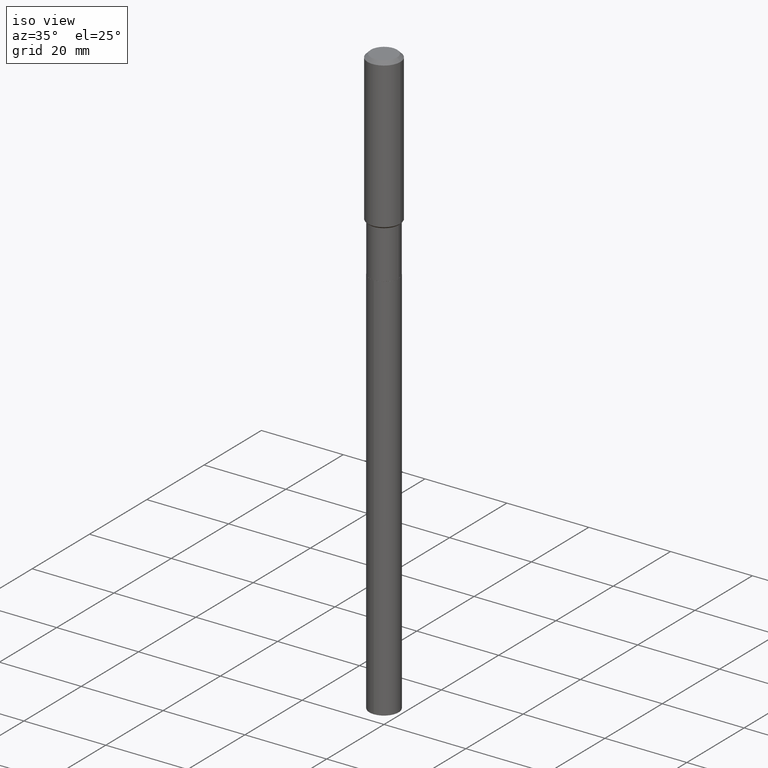
[diagram: clean part render]
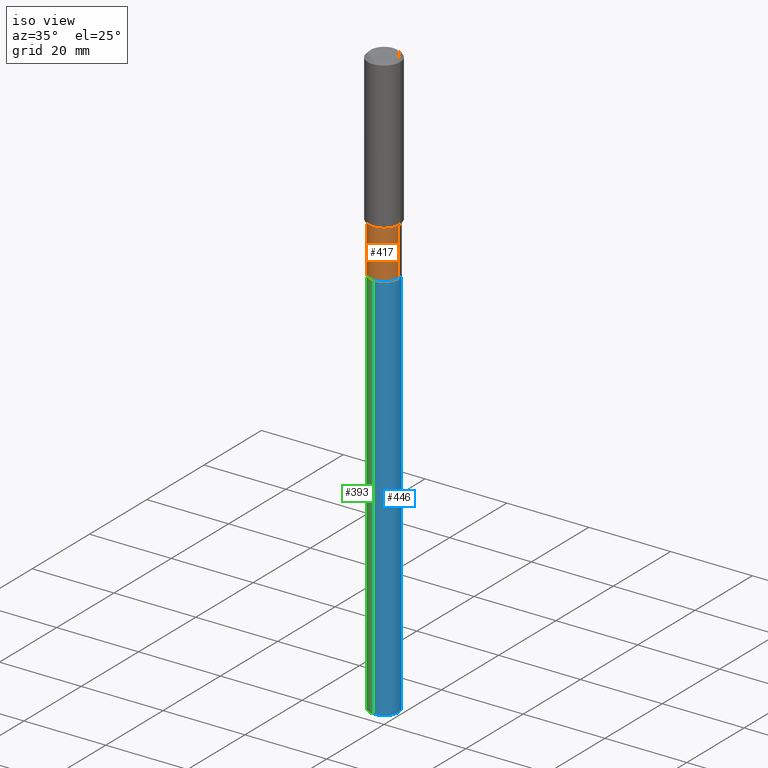
[diagram: same view with three faces highlighted in distinct colors, each labeled with its STEP entity id]
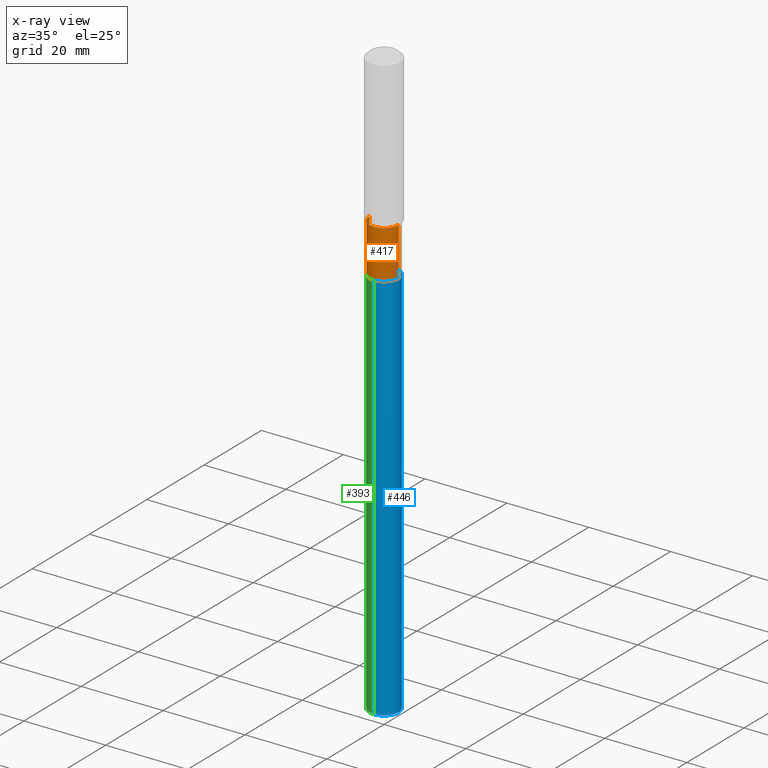
[diagram: x-ray of the same camera — body ghosted, the three highlighted faces saturated]
A machine part, iso view with three faces highlighted in distinct colors.
The next image is the same camera in x-ray (body ghosted, the three faces saturated) — at least one of them is partly hidden behind the body in this view.
Their STEP definitions:

[orange] entity #417 — the highlighted cylindrical surface (edge-blend (fillet) strip) has radius 3.5712 mm, axis along (-0, 0, 1).
#27 = DIRECTION ( 'NONE',  ( 1.000000000000000000, -6.982962677686268288E-15, 0.000000000000000000 ) ) ;
#31 = CIRCLE ( 'NONE', #357, 0.1405999999999999472 ) ;
#37 = CARTESIAN_POINT ( 'NONE',  ( 0.1406000000000000028, -7.676370871580536837E-15, -1.917400000000000437 ) ) ;
#57 = VECTOR ( 'NONE', #294, 39.37007874015748143 ) ;
#70 = DIRECTION ( 'NONE',  ( -2.445468806185136877E-29, 3.491481338843145188E-15, 1.000000000000000000 ) ) ;
#78 = VERTEX_POINT ( 'NONE', #484 ) ;
#94 = DIRECTION ( 'NONE',  ( 1.000000000000000000, -6.982962677686266711E-15, 4.876176775795935232E-29 ) ) ;
#107 = CARTESIAN_POINT ( 'NONE',  ( -0.1406000000000000028, -4.886217858275305847E-15, -1.917400000000000437 ) ) ;
#135 = CYLINDRICAL_SURFACE ( 'NONE', #314, 0.1405999999999999750 ) ;
#178 = CARTESIAN_POINT ( 'NONE',  ( 0.1405999999999999750, -9.818045524826889086E-16, 6.855904546769083471E-30 ) ) ;
#196 = VERTEX_POINT ( 'NONE', #358 ) ;
#225 = ORIENTED_EDGE ( 'NONE', *, *, #243, .F. ) ;
#226 = DIRECTION ( 'NONE',  ( -2.445468806185136597E-29, 3.491481338843145583E-15, 1.000000000000000000 ) ) ;
#238 = EDGE_CURVE ( 'NONE', #326, #312, #418, .T. ) ;
#243 = EDGE_CURVE ( 'NONE', #326, #78, #414, .T. ) ;
#253 = VECTOR ( 'NONE', #70, 39.37007874015748143 ) ;
#255 = EDGE_LOOP ( 'NONE', ( #225, #370, #277, #308 ) ) ;
#277 = ORIENTED_EDGE ( 'NONE', *, *, #360, .T. ) ;
#283 = CARTESIAN_POINT ( 'NONE',  ( 0.000000000000000000, 0.000000000000000000, 0.000000000000000000 ) ) ;
#294 = DIRECTION ( 'NONE',  ( -2.445468806185136877E-29, 3.491481338843145188E-15, 1.000000000000000000 ) ) ;
#308 = ORIENTED_EDGE ( 'NONE', *, *, #363, .F. ) ;
#312 = VERTEX_POINT ( 'NONE', #37 ) ;
#314 = AXIS2_PLACEMENT_3D ( 'NONE', #283, #433, #94 ) ;
#326 = VERTEX_POINT ( 'NONE', #107 ) ;
#342 = CARTESIAN_POINT ( 'NONE',  ( -0.1405999999999999750, 9.990230864787006837E-16, -6.916022736898396338E-30 ) ) ;
#357 = AXIS2_PLACEMENT_3D ( 'NONE', #407, #375, #27 ) ;
#358 = CARTESIAN_POINT ( 'NONE',  ( 0.1405999999999999472, -6.057720122892854042E-15, -1.453800000000000203 ) ) ;
#360 = EDGE_CURVE ( 'NONE', #312, #196, #477, .T. ) ;
#361 = FACE_OUTER_BOUND ( 'NONE', #255, .T. ) ;
#363 = EDGE_CURVE ( 'NONE', #78, #196, #31, .T. ) ;
#370 = ORIENTED_EDGE ( 'NONE', *, *, #238, .T. ) ;
#375 = DIRECTION ( 'NONE',  ( -2.445468806185136597E-29, 3.491481338843145583E-15, 1.000000000000000000 ) ) ;
#381 = DIRECTION ( 'NONE',  ( 1.000000000000000000, -6.982962677686265133E-15, 0.000000000000000000 ) ) ;
#407 = CARTESIAN_POINT ( 'NONE',  ( 3.555222550431952011E-29, -5.075915570410165725E-15, -1.453800000000000203 ) ) ;
#414 = LINE ( 'NONE', #342, #253 ) ;
#417 = ADVANCED_FACE ( 'NONE', ( #361 ), #135, .T. ) ;
#418 = CIRCLE ( 'NONE', #481, 0.1406000000000000028 ) ;
#433 = DIRECTION ( 'NONE',  ( -2.445468806185136597E-29, 3.491481338843145583E-15, 1.000000000000000000 ) ) ;
#445 = CARTESIAN_POINT ( 'NONE',  ( 4.688941888979381963E-29, -6.694566319097848520E-15, -1.917400000000000437 ) ) ;
#477 = LINE ( 'NONE', #178, #57 ) ;
#481 = AXIS2_PLACEMENT_3D ( 'NONE', #445, #226, #381 ) ;
#484 = CARTESIAN_POINT ( 'NONE',  ( -0.1405999999999999472, -4.886217858275305847E-15, -1.453800000000000203 ) ) ;

[blue] entity #446 — the highlighted cylindrical surface (edge-blend (fillet) strip) has radius 3.5712 mm, axis along (-0, 0, 1).
#3 = EDGE_CURVE ( 'NONE', #299, #362, #209, .T. ) ;
#4 = ORIENTED_EDGE ( 'NONE', *, *, #311, .F. ) ;
#12 = VECTOR ( 'NONE', #146, 39.37007874015748143 ) ;
#22 = VERTEX_POINT ( 'NONE', #100 ) ;
#38 = CYLINDRICAL_SURFACE ( 'NONE', #172, 0.1406000000000000028 ) ;
#39 = CIRCLE ( 'NONE', #210, 0.1406000000000000028 ) ;
#75 = EDGE_CURVE ( 'NONE', #22, #292, #136, .T. ) ;
#92 = AXIS2_PLACEMENT_3D ( 'NONE', #274, #236, #191 ) ;
#100 = CARTESIAN_POINT ( 'NONE',  ( 9.990230864788403121E-16, 0.1405999999999801575, -5.692616187128541227 ) ) ;
#104 = CARTESIAN_POINT ( 'NONE',  ( -9.818045524826419714E-16, -0.1406000000000066918, -1.917899999999999716 ) ) ;
#136 = LINE ( 'NONE', #223, #12 ) ;
#146 = DIRECTION ( 'NONE',  ( -2.445563635683885616E-29, 3.491345537603577277E-15, 1.000000000000000000 ) ) ;
#159 = EDGE_LOOP ( 'NONE', ( #252, #288, #4, #220 ) ) ;
#165 = DIRECTION ( 'NONE',  ( -2.445563635683885616E-29, 3.491345537603577277E-15, 1.000000000000000000 ) ) ;
#166 = CARTESIAN_POINT ( 'NONE',  ( 1.392147326565136221E-28, -1.987515057541849014E-14, -5.692616187128541227 ) ) ;
#172 = AXIS2_PLACEMENT_3D ( 'NONE', #489, #165, #318 ) ;
#184 = EDGE_CURVE ( 'NONE', #299, #22, #39, .T. ) ;
#191 = DIRECTION ( 'NONE',  ( -6.982962677686265133E-15, -1.000000000000000000, 3.885985766236505386E-15 ) ) ;
#209 = LINE ( 'NONE', #466, #409 ) ;
#210 = AXIS2_PLACEMENT_3D ( 'NONE', #166, #319, #242 ) ;
#220 = ORIENTED_EDGE ( 'NONE', *, *, #3, .F. ) ;
#223 = CARTESIAN_POINT ( 'NONE',  ( 9.990230864787476209E-16, 0.1405999999999933137, -1.917900000000000826 ) ) ;
#236 = DIRECTION ( 'NONE',  ( -2.445563635683885616E-29, 3.491345537603577277E-15, 1.000000000000000000 ) ) ;
#242 = DIRECTION ( 'NONE',  ( -6.982962677686265133E-15, -1.000000000000000000, 0.000000000000000000 ) ) ;
#252 = ORIENTED_EDGE ( 'NONE', *, *, #184, .T. ) ;
#267 = CARTESIAN_POINT ( 'NONE',  ( -9.818045524825498719E-16, -0.1406000000000198757, -5.692616187128541227 ) ) ;
#274 = CARTESIAN_POINT ( 'NONE',  ( 4.690164623382474764E-29, -6.696312059767270024E-15, -1.917900000000000382 ) ) ;
#288 = ORIENTED_EDGE ( 'NONE', *, *, #75, .T. ) ;
#292 = VERTEX_POINT ( 'NONE', #385 ) ;
#299 = VERTEX_POINT ( 'NONE', #267 ) ;
#311 = EDGE_CURVE ( 'NONE', #362, #292, #346, .T. ) ;
#318 = DIRECTION ( 'NONE',  ( -6.982962677686265133E-15, -1.000000000000000000, 3.885985766236505386E-15 ) ) ;
#319 = DIRECTION ( 'NONE',  ( -2.445563635683885616E-29, 3.491345537603577277E-15, 1.000000000000000000 ) ) ;
#346 = CIRCLE ( 'NONE', #92, 0.1406000000000000028 ) ;
#362 = VERTEX_POINT ( 'NONE', #104 ) ;
#385 = CARTESIAN_POINT ( 'NONE',  ( 9.990230864788405093E-16, 0.1405999999999933137, -1.917900000000000826 ) ) ;
#388 = FACE_OUTER_BOUND ( 'NONE', #159, .T. ) ;
#397 = DIRECTION ( 'NONE',  ( -2.445563635683885616E-29, 3.491345537603577277E-15, 1.000000000000000000 ) ) ;
#409 = VECTOR ( 'NONE', #397, 39.37007874015748143 ) ;
#446 = ADVANCED_FACE ( 'NONE', ( #388 ), #38, .T. ) ;
#466 = CARTESIAN_POINT ( 'NONE',  ( -9.818045524826419714E-16, -0.1406000000000066918, -1.917899999999999716 ) ) ;
#489 = CARTESIAN_POINT ( 'NONE',  ( 4.690164623382474764E-29, -6.696312059767270024E-15, -1.917900000000000382 ) ) ;

[green] entity #393 — the highlighted cylindrical surface (edge-blend (fillet) strip) has radius 3.5712 mm, axis along (-0, 0, 1).
#3 = EDGE_CURVE ( 'NONE', #299, #362, #209, .T. ) ;
#12 = VECTOR ( 'NONE', #146, 39.37007874015748143 ) ;
#22 = VERTEX_POINT ( 'NONE', #100 ) ;
#30 = AXIS2_PLACEMENT_3D ( 'NONE', #365, #465, #171 ) ;
#45 = DIRECTION ( 'NONE',  ( -6.982962677686265133E-15, -1.000000000000000000, 3.885985766236505386E-15 ) ) ;
#50 = EDGE_CURVE ( 'NONE', #292, #362, #322, .T. ) ;
#64 = ORIENTED_EDGE ( 'NONE', *, *, #50, .F. ) ;
#65 = AXIS2_PLACEMENT_3D ( 'NONE', #355, #170, #328 ) ;
#75 = EDGE_CURVE ( 'NONE', #22, #292, #136, .T. ) ;
#86 = CYLINDRICAL_SURFACE ( 'NONE', #454, 0.1406000000000000028 ) ;
#88 = CARTESIAN_POINT ( 'NONE',  ( 4.690164623382474764E-29, -6.696312059767270024E-15, -1.917900000000000382 ) ) ;
#100 = CARTESIAN_POINT ( 'NONE',  ( 9.990230864788403121E-16, 0.1405999999999801575, -5.692616187128541227 ) ) ;
#101 = ORIENTED_EDGE ( 'NONE', *, *, #75, .F. ) ;
#104 = CARTESIAN_POINT ( 'NONE',  ( -9.818045524826419714E-16, -0.1406000000000066918, -1.917899999999999716 ) ) ;
#136 = LINE ( 'NONE', #223, #12 ) ;
#146 = DIRECTION ( 'NONE',  ( -2.445563635683885616E-29, 3.491345537603577277E-15, 1.000000000000000000 ) ) ;
#153 = EDGE_CURVE ( 'NONE', #22, #299, #400, .T. ) ;
#170 = DIRECTION ( 'NONE',  ( -2.445563635683885616E-29, 3.491345537603577277E-15, 1.000000000000000000 ) ) ;
#171 = DIRECTION ( 'NONE',  ( -6.982962677686265133E-15, -1.000000000000000000, 0.000000000000000000 ) ) ;
#209 = LINE ( 'NONE', #466, #409 ) ;
#223 = CARTESIAN_POINT ( 'NONE',  ( 9.990230864787476209E-16, 0.1405999999999933137, -1.917900000000000826 ) ) ;
#234 = ORIENTED_EDGE ( 'NONE', *, *, #3, .T. ) ;
#267 = CARTESIAN_POINT ( 'NONE',  ( -9.818045524825498719E-16, -0.1406000000000198757, -5.692616187128541227 ) ) ;
#272 = DIRECTION ( 'NONE',  ( -2.445563635683885616E-29, 3.491345537603577277E-15, 1.000000000000000000 ) ) ;
#285 = ORIENTED_EDGE ( 'NONE', *, *, #153, .T. ) ;
#292 = VERTEX_POINT ( 'NONE', #385 ) ;
#299 = VERTEX_POINT ( 'NONE', #267 ) ;
#322 = CIRCLE ( 'NONE', #65, 0.1406000000000000028 ) ;
#328 = DIRECTION ( 'NONE',  ( -6.982962677686265133E-15, -1.000000000000000000, 3.885985766236505386E-15 ) ) ;
#355 = CARTESIAN_POINT ( 'NONE',  ( 4.690164623382474764E-29, -6.696312059767270024E-15, -1.917900000000000382 ) ) ;
#362 = VERTEX_POINT ( 'NONE', #104 ) ;
#365 = CARTESIAN_POINT ( 'NONE',  ( 1.392147326565136221E-28, -1.987515057541849014E-14, -5.692616187128541227 ) ) ;
#385 = CARTESIAN_POINT ( 'NONE',  ( 9.990230864788405093E-16, 0.1405999999999933137, -1.917900000000000826 ) ) ;
#393 = ADVANCED_FACE ( 'NONE', ( #424 ), #86, .T. ) ;
#397 = DIRECTION ( 'NONE',  ( -2.445563635683885616E-29, 3.491345537603577277E-15, 1.000000000000000000 ) ) ;
#400 = CIRCLE ( 'NONE', #30, 0.1406000000000000028 ) ;
#409 = VECTOR ( 'NONE', #397, 39.37007874015748143 ) ;
#424 = FACE_OUTER_BOUND ( 'NONE', #434, .T. ) ;
#434 = EDGE_LOOP ( 'NONE', ( #101, #285, #234, #64 ) ) ;
#454 = AXIS2_PLACEMENT_3D ( 'NONE', #88, #272, #45 ) ;
#465 = DIRECTION ( 'NONE',  ( -2.445563635683885616E-29, 3.491345537603577277E-15, 1.000000000000000000 ) ) ;
#466 = CARTESIAN_POINT ( 'NONE',  ( -9.818045524826419714E-16, -0.1406000000000066918, -1.917899999999999716 ) ) ;